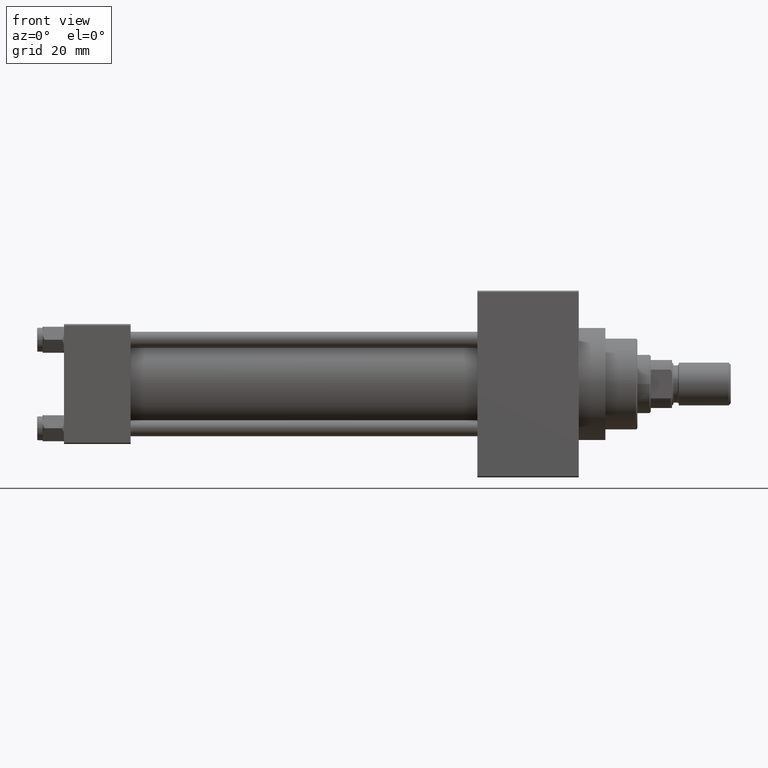
[diagram: clean part render]
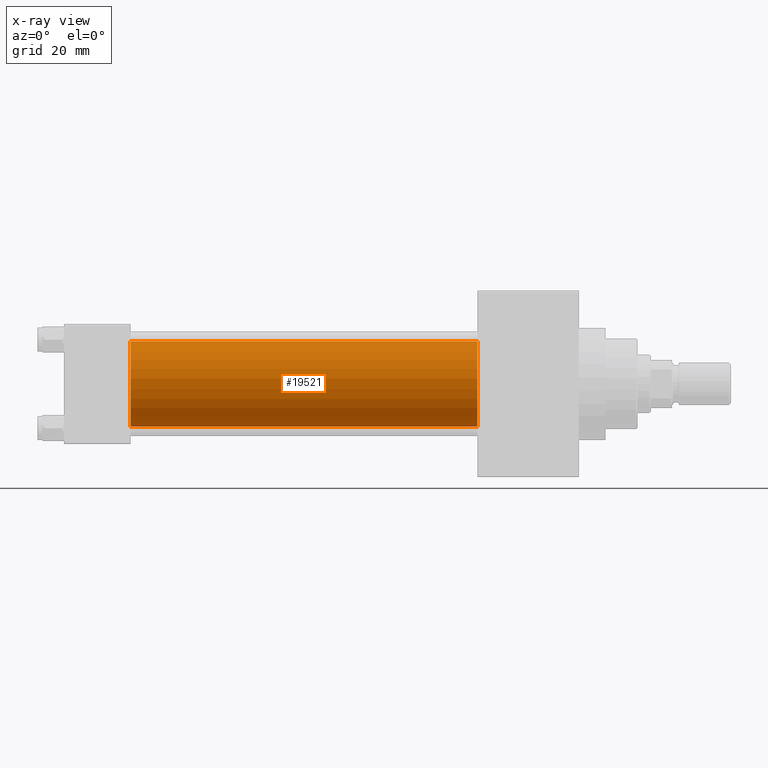
[diagram: x-ray — body ghosted, one internal face saturated and labeled with its STEP entity id]
A machine part, front view, then the same camera in x-ray: the body is ghosted and one INTERNAL B-rep face — a face not visible from any outside direction — is saturated and labeled: STEP entity #19521.
In plain terms, the highlighted cylindrical surface (partial cylindrical patch) has radius 16 mm, axis along (-1, -0, -0).
Its self-contained STEP definition (entity closure, byte-faithful):
#408 = DIRECTION ( 'NONE',  ( 1.000000000000000000, 0.000000000000000000, 0.000000000000000000 ) ) ;
#682 = CARTESIAN_POINT ( 'NONE',  ( 155.0000000000000000, -2.602085213965210642E-15, 16.00000000000000000 ) ) ;
#943 = VECTOR ( 'NONE', #15521, 1000.000000000000000 ) ;
#1784 = AXIS2_PLACEMENT_3D ( 'NONE', #16139, #35208, #21486 ) ;
#3126 = EDGE_CURVE ( 'NONE', #35822, #44828, #30165, .T. ) ;
#4853 = LINE ( 'NONE', #30390, #943 ) ;
#4871 = CARTESIAN_POINT ( 'NONE',  ( 155.0000000000000000, -2.602085213965210642E-15, 16.00000000000000000 ) ) ;
#4992 = CARTESIAN_POINT ( 'NONE',  ( 155.0000000000000000, -6.426503353294456087E-16, -16.00000000000000000 ) ) ;
#8567 = CARTESIAN_POINT ( 'NONE',  ( 25.00000000000000000, -2.602085213965210642E-15, 0.000000000000000000 ) ) ;
#9377 = ORIENTED_EDGE ( 'NONE', *, *, #14707, .T. ) ;
#12405 = CYLINDRICAL_SURFACE ( 'NONE', #1784, 16.00000000000000000 ) ;
#12541 = DIRECTION ( 'NONE',  ( -1.000000000000000000, -0.000000000000000000, -0.000000000000000000 ) ) ;
#12658 = FACE_OUTER_BOUND ( 'NONE', #14572, .T. ) ;
#13611 = EDGE_CURVE ( 'NONE', #23731, #19335, #4853, .T. ) ;
#14572 = EDGE_LOOP ( 'NONE', ( #9377, #30519, #22296, #38492 ) ) ;
#14707 = EDGE_CURVE ( 'NONE', #35822, #23731, #35008, .T. ) ;
#15521 = DIRECTION ( 'NONE',  ( -1.000000000000000000, -0.000000000000000000, -0.000000000000000000 ) ) ;
#16139 = CARTESIAN_POINT ( 'NONE',  ( 155.0000000000000000, -2.602085213965210642E-15, 0.000000000000000000 ) ) ;
#19335 = VERTEX_POINT ( 'NONE', #30514 ) ;
#19521 = ADVANCED_FACE ( 'NONE', ( #12658 ), #12405, .F. ) ;
#19819 = EDGE_CURVE ( 'NONE', #44828, #19335, #45378, .T. ) ;
#21486 = DIRECTION ( 'NONE',  ( 0.000000000000000000, 0.000000000000000000, 1.000000000000000000 ) ) ;
#22296 = ORIENTED_EDGE ( 'NONE', *, *, #19819, .F. ) ;
#23205 = DIRECTION ( 'NONE',  ( 0.000000000000000000, 0.000000000000000000, -1.000000000000000000 ) ) ;
#23731 = VERTEX_POINT ( 'NONE', #4992 ) ;
#25910 = DIRECTION ( 'NONE',  ( 1.000000000000000000, 0.000000000000000000, 0.000000000000000000 ) ) ;
#26731 = CARTESIAN_POINT ( 'NONE',  ( 25.00000000000000000, -2.602085213965210642E-15, 16.00000000000000000 ) ) ;
#27162 = AXIS2_PLACEMENT_3D ( 'NONE', #8567, #408, #23205 ) ;
#29876 = VECTOR ( 'NONE', #12541, 1000.000000000000000 ) ;
#30165 = LINE ( 'NONE', #4871, #29876 ) ;
#30390 = CARTESIAN_POINT ( 'NONE',  ( 155.0000000000000000, -6.426503353294456087E-16, -16.00000000000000000 ) ) ;
#30514 = CARTESIAN_POINT ( 'NONE',  ( 25.00000000000000000, -6.426503353294456087E-16, -16.00000000000000000 ) ) ;
#30519 = ORIENTED_EDGE ( 'NONE', *, *, #13611, .T. ) ;
#35008 = CIRCLE ( 'NONE', #41350, 16.00000000000000000 ) ;
#35208 = DIRECTION ( 'NONE',  ( -1.000000000000000000, -0.000000000000000000, -0.000000000000000000 ) ) ;
#35822 = VERTEX_POINT ( 'NONE', #682 ) ;
#38492 = ORIENTED_EDGE ( 'NONE', *, *, #3126, .F. ) ;
#41028 = DIRECTION ( 'NONE',  ( 0.000000000000000000, 0.000000000000000000, -1.000000000000000000 ) ) ;
#41350 = AXIS2_PLACEMENT_3D ( 'NONE', #44749, #25910, #41028 ) ;
#44749 = CARTESIAN_POINT ( 'NONE',  ( 155.0000000000000000, -2.602085213965210642E-15, 0.000000000000000000 ) ) ;
#44828 = VERTEX_POINT ( 'NONE', #26731 ) ;
#45378 = CIRCLE ( 'NONE', #27162, 16.00000000000000000 ) ;